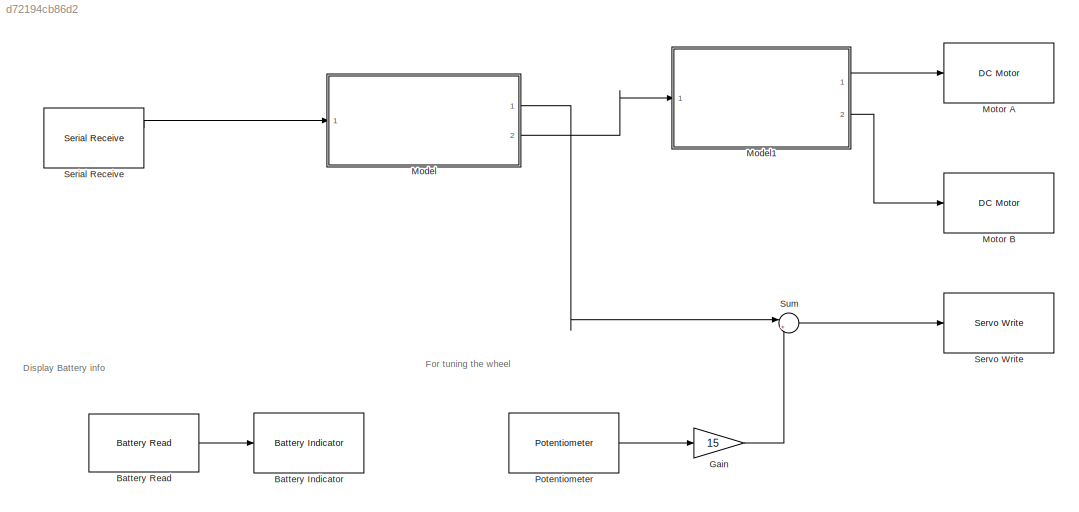
MODEL slx_d72194cb86d2
KIND model
CONFIG AbsTol = auto
CONFIG EnableMultiTasking = on
CONFIG FixedStep = auto
CONFIG MaxStep = auto
CONFIG MinStep = auto
CONFIG RelTol = 1e-3
CONFIG SampleTimeConstraint = Unconstrained
CONFIG Solver = FixedStepDiscrete
CONFIG SolverName = FixedStepDiscrete
CONFIG StartTime = 0.0
CONFIG StopTime = 10.0
BLOCK [Reference] Battery Indicator  REF=frdmtfcshieldlib/Battery Indicator
  Ports = [1]
  SourceBlock = frdmtfcshieldlib/Battery Indicator
  SourceType = Battery Indicator
BLOCK [Reference] Battery Read  REF=frdmtfcshieldlib/Battery Read
  Ports = [0, 1]
  SourceBlock = frdmtfcshieldlib/Battery Read
  SourceType = Battery Read
BLOCK [Gain] Gain
  Gain = 15
  OutDataTypeStr = Inherit: Inherit via internal rule
  ParamDataTypeStr = Inherit: Inherit via internal rule
  SaturateOnIntegerOverflow = off
BLOCK [ModelReference] Model
  ModelNameDialog = serial_vector_to_frdm.slx
  ModelReferenceVersion = 1.10
  Ports = [1, 2]
  Variant = off
BLOCK [ModelReference] Model1
  ModelNameDialog = controller.slx
  ModelReferenceVersion = 1.7
  Ports = [1, 2]
  Variant = off
BLOCK [Reference] Motor A  REF=frdmtfcshieldlib/DC Motor
  Ports = [1]
  SourceBlock = frdmtfcshieldlib/DC Motor
  SourceType = DC Motor
BLOCK [Reference] Motor B  REF=frdmtfcshieldlib/DC Motor
  Ports = [1]
  SourceBlock = frdmtfcshieldlib/DC Motor
  SourceType = DC Motor
BLOCK [Reference] Potentiometer  REF=frdmtfcshieldlib/Potentiometer
  Ports = [0, 1]
  SourceBlock = frdmtfcshieldlib/Potentiometer
  SourceType = Potentiometer
BLOCK [Reference] Serial Receive  REF=frdmkl25zlib/Serial Receive
  Ports = [0, 2]
  SourceBlock = frdmkl25zlib/Serial Receive
  SourceType = Serial Receive
BLOCK [Reference] Servo Write  REF=frdmtfcshieldlib/Servo Write
  Ports = [1]
  SourceBlock = frdmtfcshieldlib/Servo Write
  SourceType = Servo Write
BLOCK [Sum] Sum
  IconShape = round
  InputSameDT = off
  Inputs = |++
  OutDataTypeStr = Inherit: Inherit via internal rule
  Ports = [2, 1]
  SaturateOnIntegerOverflow = off
ANNOTATION (root): Display Battery info
ANNOTATION (root): For tuning the wheel
LINE Battery Read:1 -> Battery Indicator:1
LINE Gain:1 -> Sum:2
LINE Model1:1 -> Motor A:1
LINE Model1:2 -> Motor B:1
LINE Model:1 -> Sum:1
LINE Model:2 -> Model1:1
LINE Potentiometer:1 -> Gain:1
LINE Serial Receive:1 -> Model:1
LINE Sum:1 -> Servo Write:1
